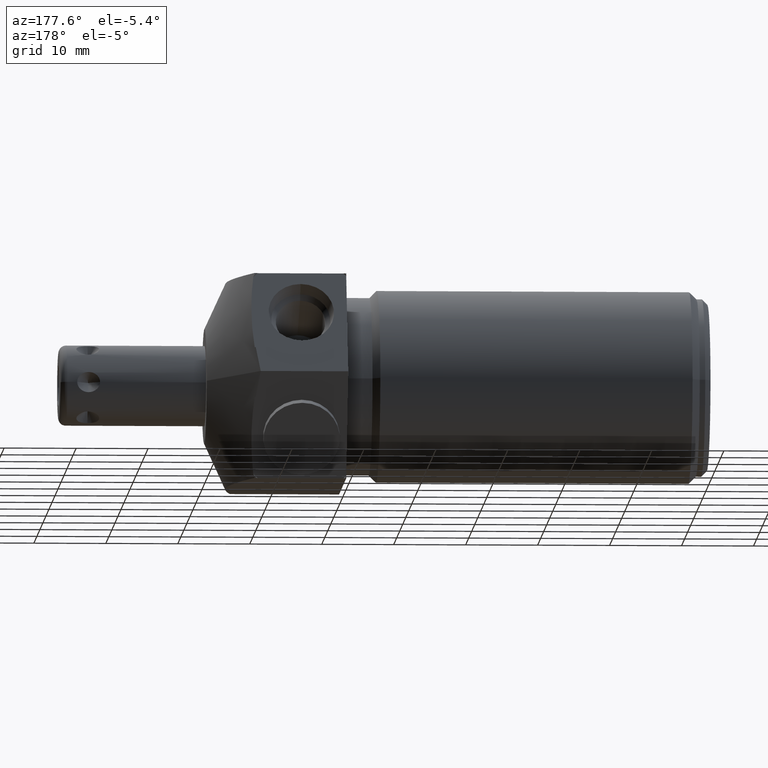
[diagram: clean part render]
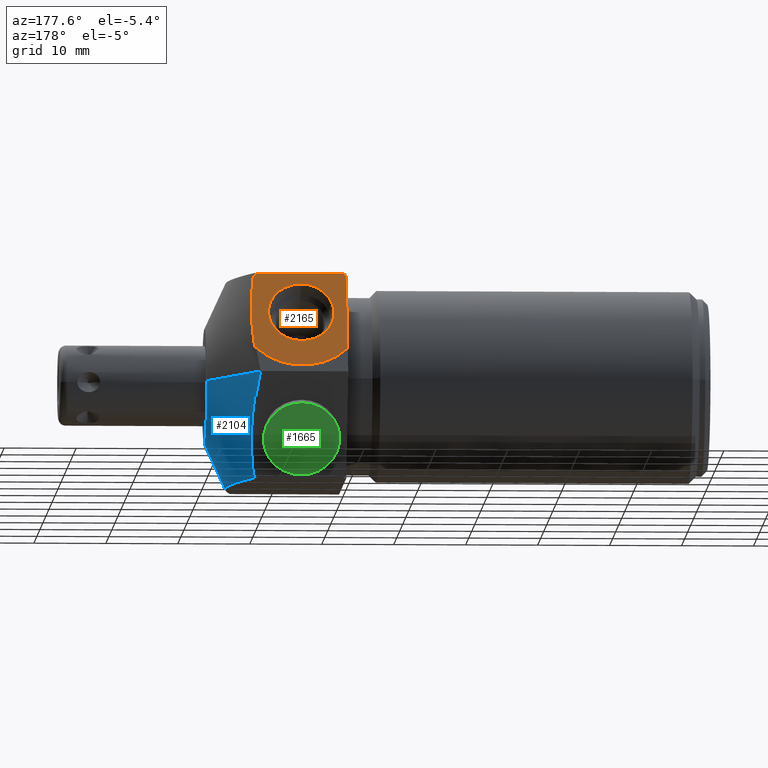
[diagram: same view with three faces highlighted in distinct colors, each labeled with its STEP entity id]
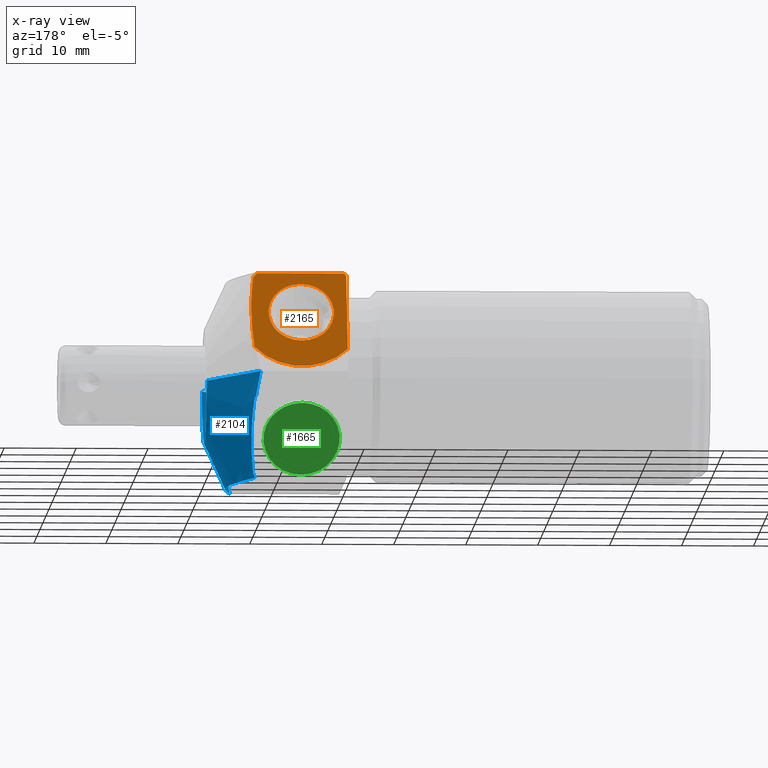
[diagram: x-ray of the same camera — body ghosted, the three highlighted faces saturated]
A machine part, auxiliary view with three faces highlighted in distinct colors.
The next image is the same camera in x-ray (body ghosted, the three faces saturated) — at least one of them is partly hidden behind the body in this view.
Their STEP definitions:

[orange] entity #2165 — the highlighted planar face has unit normal (0, -0.9063, -0.4226).
#310=DIRECTION('',(0.E0,4.226182617407E-1,-9.063077870367E-1));
#311=VECTOR('',#310,4.638146181396E-1);
#312=CARTESIAN_POINT('',(0.E0,4.418505813593E-1,5.491192459967E-1));
#313=LINE('',#312,#311);
#660=DIRECTION('',(1.E0,0.E0,0.E0));
#661=VECTOR('',#660,4.708895888355E-1);
#662=CARTESIAN_POINT('',(1.455520558224E-2,4.356110332957E-1,5.625E-1));
#663=LINE('',#662,#661);
#726=CARTESIAN_POINT('',(2.5E-1,5.398588452034E-1,3.389398459160E-1));
#727=DIRECTION('',(0.E0,-9.063077870367E-1,-4.226182617407E-1));
#728=DIRECTION('',(-6.904539425741E-1,-3.057120583802E-1,6.556016248796E-1));
#729=AXIS2_PLACEMENT_3D('',#726,#727,#728);
#734=CARTESIAN_POINT('',(5.088461842540E-1,4.460417289474E-1,
5.401313009894E-1));
#735=CARTESIAN_POINT('',(5.119136720244E-1,4.564632112213E-1,
5.177823601310E-1));
#736=CARTESIAN_POINT('',(5.170971932528E-1,4.773055134610E-1,
4.730858987386E-1));
#737=CARTESIAN_POINT('',(5.218417056262E-1,5.085565197783E-1,
4.060678994181E-1));
#738=CARTESIAN_POINT('',(5.234414757905E-1,5.398603729593E-1,
3.389365696330E-1));
#739=CARTESIAN_POINT('',(5.218414140613E-1,5.711639626308E-1,
2.718058049455E-1));
#740=CARTESIAN_POINT('',(5.170966721897E-1,6.024145862594E-1,
2.047886263038E-1));
#741=CARTESIAN_POINT('',(5.119133954888E-1,6.232554186874E-1,
1.600953169329E-1));
#742=CARTESIAN_POINT('',(5.088461842540E-1,6.336759614594E-1,
1.377483908427E-1));
#747=CARTESIAN_POINT('',(2.5E-1,5.398588452034E-1,3.389398459160E-1));
#748=DIRECTION('',(0.E0,-9.063077870367E-1,-4.226182617407E-1));
#749=DIRECTION('',(7.590797192201E-1,-2.751235080822E-1,5.900042670772E-1));
#750=AXIS2_PLACEMENT_3D('',#747,#748,#749);
#755=CARTESIAN_POINT('',(2.5E-1,5.398588452034E-1,3.389398459160E-1));
#756=DIRECTION('',(0.E0,9.063077870367E-1,4.226182617407E-1));
#757=DIRECTION('',(0.E0,4.226182617407E-1,-9.063077870366E-1));
#758=AXIS2_PLACEMENT_3D('',#755,#756,#757);
#763=CARTESIAN_POINT('',(2.5E-1,5.398588452034E-1,3.389398459160E-1));
#764=DIRECTION('',(0.E0,9.063077870367E-1,4.226182617407E-1));
#765=DIRECTION('',(0.E0,-4.226182617407E-1,9.063077870366E-1));
#766=AXIS2_PLACEMENT_3D('',#763,#764,#765);
#771=CARTESIAN_POINT('',(2.5E-1,5.398588452034E-1,3.389398459160E-1));
#772=DIRECTION('',(0.E0,9.063077870367E-1,4.226182617407E-1));
#773=DIRECTION('',(7.590797192201E-1,2.751235080822E-1,-5.900042670772E-1));
#774=AXIS2_PLACEMENT_3D('',#771,#772,#773);
#1538=CARTESIAN_POINT('',(1.455520558224E-2,4.356110332957E-1,5.625E-1));
#1539=CARTESIAN_POINT('',(4.854447944178E-1,4.356110332957E-1,5.625E-1));
#1540=VERTEX_POINT('',#1538);
#1541=VERTEX_POINT('',#1539);
#1543=CARTESIAN_POINT('',(0.E0,4.418505813593E-1,5.491192459967E-1));
#1544=VERTEX_POINT('',#1543);
#1557=CARTESIAN_POINT('',(2.5E-1,6.155075140550E-1,1.767107520365E-1));
#1558=CARTESIAN_POINT('',(2.5E-1,4.642101763518E-1,5.011689397956E-1));
#1559=VERTEX_POINT('',#1557);
#1560=VERTEX_POINT('',#1558);
#1571=CARTESIAN_POINT('',(0.E0,6.378671090474E-1,1.287604458354E-1));
#1572=VERTEX_POINT('',#1571);
#1577=VERTEX_POINT('',#734);
#1578=VERTEX_POINT('',#742);
#2142=CARTESIAN_POINT('',(2.5E-1,5.398588452034E-1,3.389398459160E-1));
#2143=DIRECTION('',(0.E0,-9.063077870367E-1,-4.226182617407E-1));
#2144=DIRECTION('',(0.E0,4.226182617407E-1,-9.063077870367E-1));
#2145=AXIS2_PLACEMENT_3D('',#2142,#2143,#2144);
#2146=PLANE('',#2145);
#2147=ORIENTED_EDGE('',*,*,#2125,.F.);
#2149=ORIENTED_EDGE('',*,*,#2148,.T.);
#2150=ORIENTED_EDGE('',*,*,#1833,.T.);
#2152=ORIENTED_EDGE('',*,*,#2151,.F.);
#2154=ORIENTED_EDGE('',*,*,#2153,.F.);
#2156=ORIENTED_EDGE('',*,*,#2155,.T.);
#2157=EDGE_LOOP('',(#2147,#2149,#2150,#2152,#2154,#2156));
#2158=FACE_OUTER_BOUND('',#2157,.F.);
#2160=ORIENTED_EDGE('',*,*,#2159,.T.);
#2162=ORIENTED_EDGE('',*,*,#2161,.T.);
#2163=EDGE_LOOP('',(#2160,#2162));
#2164=FACE_BOUND('',#2163,.F.);
#2165=ADVANCED_FACE('',(#2158,#2164),#2146,.F.);
#730=CIRCLE('',#729,3.41E-1);
#743=B_SPLINE_CURVE_WITH_KNOTS('',3,(#734,#735,#736,#737,#738,#739,#740,#741,
#742),.UNSPECIFIED.,.F.,.F.,(4,1,1,1,1,1,4),(0.E0,1.666666666667E-1,
3.333333333333E-1,5.E-1,6.666666666667E-1,8.333333333333E-1,1.E0),
.UNSPECIFIED.);
#751=CIRCLE('',#750,3.41E-1);
#759=CIRCLE('',#758,1.79E-1);
#767=CIRCLE('',#766,1.79E-1);
#775=CIRCLE('',#774,3.41E-1);
#1833=EDGE_CURVE('',#1544,#1572,#313,.T.);
#2125=EDGE_CURVE('',#1540,#1541,#663,.T.);
#2148=EDGE_CURVE('',#1540,#1544,#730,.T.);
#2151=EDGE_CURVE('',#1578,#1572,#775,.T.);
#2153=EDGE_CURVE('',#1577,#1578,#743,.T.);
#2155=EDGE_CURVE('',#1577,#1541,#751,.T.);
#2159=EDGE_CURVE('',#1559,#1560,#759,.T.);
#2161=EDGE_CURVE('',#1560,#1559,#767,.T.);

[blue] entity #2104 — the highlighted conical surface has half-angle 65 deg.
#154=CARTESIAN_POINT('',(5.088461842540E-1,6.336759614594E-1,
-1.377483908427E-1));
#155=CARTESIAN_POINT('',(5.119136720244E-1,6.232544791855E-1,
-1.600973317011E-1));
#156=CARTESIAN_POINT('',(5.170971932528E-1,6.024121769458E-1,
-2.047937930934E-1));
#157=CARTESIAN_POINT('',(5.218417056262E-1,5.711611706284E-1,
-2.718117924140E-1));
#158=CARTESIAN_POINT('',(5.234414757905E-1,5.398573174475E-1,
-3.389431221991E-1));
#159=CARTESIAN_POINT('',(5.218414140613E-1,5.085537277759E-1,
-4.060738868866E-1));
#160=CARTESIAN_POINT('',(5.170966721897E-1,4.773031041474E-1,
-4.730910655283E-1));
#161=CARTESIAN_POINT('',(5.119133954888E-1,4.564622717194E-1,
-5.177843748992E-1));
#162=CARTESIAN_POINT('',(5.088461842540E-1,4.460417289474E-1,
-5.401313009894E-1));
#213=CARTESIAN_POINT('',(5.017858896735E-1,4.466448124854E-1,-5.625E-1));
#214=CARTESIAN_POINT('',(5.124285199508E-1,4.161261041085E-1,-5.625E-1));
#215=CARTESIAN_POINT('',(5.319160560046E-1,3.582675629128E-1,-5.625E-1));
#216=CARTESIAN_POINT('',(5.555809071998E-1,2.823954536952E-1,-5.625E-1));
#217=CARTESIAN_POINT('',(5.751828089178E-1,2.136443540677E-1,-5.625E-1));
#218=CARTESIAN_POINT('',(5.915058484384E-1,1.497828566668E-1,-5.625E-1));
#219=CARTESIAN_POINT('',(6.050737611444E-1,8.899300830255E-2,-5.625E-1));
#220=CARTESIAN_POINT('',(6.161345734624E-1,2.998187906071E-2,-5.625E-1));
#221=CARTESIAN_POINT('',(6.247563065770E-1,-2.823001335806E-2,-5.625E-1));
#222=CARTESIAN_POINT('',(6.308640061414E-1,-8.629067168121E-2,-5.625E-1));
#223=CARTESIAN_POINT('',(6.343074256497E-1,-1.444910150945E-1,-5.625E-1));
#224=CARTESIAN_POINT('',(6.349560496138E-1,-2.028117433477E-1,-5.625E-1));
#225=CARTESIAN_POINT('',(6.327805426207E-1,-2.610799655521E-1,-5.625E-1));
#226=CARTESIAN_POINT('',(6.278766368966E-1,-3.191645706285E-1,-5.625E-1));
#227=CARTESIAN_POINT('',(6.203865509863E-1,-3.772668225426E-1,-5.625E-1));
#228=CARTESIAN_POINT('',(6.104691332851E-1,-4.356817760415E-1,-5.625E-1));
#229=CARTESIAN_POINT('',(6.021538478645E-1,-4.758005482973E-1,-5.625E-1));
#230=CARTESIAN_POINT('',(5.976003223953E-1,-4.960783708246E-1,-5.625E-1));
#594=CARTESIAN_POINT('',(5.036072321582E-1,4.525831524236E-1,
-5.497651889061E-1));
#595=CARTESIAN_POINT('',(5.033121042958E-1,4.515935470542E-1,
-5.518874044695E-1));
#596=CARTESIAN_POINT('',(5.027133834995E-1,4.496142202441E-1,
-5.561320845116E-1));
#597=CARTESIAN_POINT('',(5.020978398968E-1,4.476346557384E-1,
-5.603772742936E-1));
#598=CARTESIAN_POINT('',(5.017858896735E-1,4.466448124854E-1,-5.625E-1));
#603=CARTESIAN_POINT('',(4.791018906763E-1,7.089428701975E-1,0.E0));
#604=CARTESIAN_POINT('',(4.841175794509E-1,6.981866909093E-1,
-2.306670092182E-2));
#605=CARTESIAN_POINT('',(4.932497257403E-1,6.768197103861E-1,
-6.888833852417E-2));
#606=CARTESIAN_POINT('',(5.004838178306E-1,6.557339427254E-1,
-1.141069131969E-1));
#607=CARTESIAN_POINT('',(5.036072321582E-1,6.452606937239E-1,
-1.365668681608E-1));
#627=CARTESIAN_POINT('',(5.036072321582E-1,4.525831524236E-1,
-5.497651889061E-1));
#628=CARTESIAN_POINT('',(5.044973959964E-1,4.514566626452E-1,
-5.481471928456E-1));
#629=CARTESIAN_POINT('',(5.062607421928E-1,4.492401600280E-1,
-5.449233066923E-1));
#630=CARTESIAN_POINT('',(5.079900527902E-1,4.470959425985E-1,
-5.417243589410E-1));
#631=CARTESIAN_POINT('',(5.088461842540E-1,4.460417289474E-1,
-5.401313009894E-1));
#636=CARTESIAN_POINT('',(6.343557007776E-1,-7.5E-1,0.E0));
#637=CARTESIAN_POINT('',(6.343557007776E-1,-7.5E-1,-2.639945227058E-2));
#638=CARTESIAN_POINT('',(6.339228743735E-1,-7.472089192813E-1,
-7.921164799552E-2));
#639=CARTESIAN_POINT('',(6.319914703219E-1,-7.346925548924E-1,
-1.575620260070E-1));
#640=CARTESIAN_POINT('',(6.288224715053E-1,-7.139555821587E-1,
-2.342427704134E-1));
#641=CARTESIAN_POINT('',(6.244924603731E-1,-6.852191351177E-1,
-3.083562685212E-1));
#642=CARTESIAN_POINT('',(6.190914041522E-1,-6.487235541059E-1,
-3.791756269234E-1));
#643=CARTESIAN_POINT('',(6.127404277032E-1,-6.048849800505E-1,
-4.457974419392E-1));
#644=CARTESIAN_POINT('',(6.055634018664E-1,-5.541430465208E-1,
-5.074980845745E-1));
#645=CARTESIAN_POINT('',(6.003168663148E-1,-5.160731810444E-1,
-5.448662348822E-1));
#646=CARTESIAN_POINT('',(5.976003223953E-1,-4.960783708246E-1,-5.625E-1));
#651=CARTESIAN_POINT('',(5.088461842540E-1,6.336759614594E-1,
-1.377483908427E-1));
#652=CARTESIAN_POINT('',(5.079900527902E-1,6.355739501237E-1,
-1.375319674393E-1));
#653=CARTESIAN_POINT('',(5.062607421928E-1,6.394027626687E-1,
-1.371182893074E-1));
#654=CARTESIAN_POINT('',(5.044973959964E-1,6.432971431608E-1,
-1.367439547460E-1));
#655=CARTESIAN_POINT('',(5.036072321582E-1,6.452606937239E-1,
-1.365668681608E-1));
#837=DIRECTION('',(4.226182617407E-1,-9.063077870367E-1,0.E0));
#838=VECTOR('',#837,6.409995351547E-1);
#839=CARTESIAN_POINT('',(4.791018906763E-1,7.089428701975E-1,0.E0));
#840=LINE('',#839,#838);
#844=DIRECTION('',(4.226182617407E-1,9.063077870367E-1,0.E0));
#845=VECTOR('',#844,2.736377239027E-1);
#846=CARTESIAN_POINT('',(6.343557007776E-1,-7.5E-1,0.E0));
#847=LINE('',#846,#845);
#875=CARTESIAN_POINT('',(7.5E-1,-1.87E-1,0.E0));
#876=DIRECTION('',(-1.E0,0.E0,0.E0));
#877=DIRECTION('',(0.E0,1.E0,0.E0));
#878=AXIS2_PLACEMENT_3D('',#875,#876,#877);
#1493=CARTESIAN_POINT('',(7.5E-1,1.28E-1,0.E0));
#1494=CARTESIAN_POINT('',(7.5E-1,-5.02E-1,0.E0));
#1495=VERTEX_POINT('',#1493);
#1496=VERTEX_POINT('',#1494);
#1497=VERTEX_POINT('',#636);
#1498=VERTEX_POINT('',#646);
#1500=VERTEX_POINT('',#213);
#1502=CARTESIAN_POINT('',(4.791018906763E-1,7.089428701975E-1,0.E0));
#1503=VERTEX_POINT('',#1502);
#1567=CARTESIAN_POINT('',(5.036072321582E-1,4.525831524236E-1,
-5.497651889061E-1));
#1568=VERTEX_POINT('',#1567);
#1569=CARTESIAN_POINT('',(5.088461842540E-1,4.460417289474E-1,
-5.401313009894E-1));
#1570=VERTEX_POINT('',#1569);
#1588=VERTEX_POINT('',#154);
#1589=VERTEX_POINT('',#655);
#2083=CARTESIAN_POINT('',(6.145509453382E-1,-1.87E-1,0.E0));
#2084=DIRECTION('',(-1.E0,0.E0,0.E0));
#2085=DIRECTION('',(0.E0,1.E0,0.E0));
#2086=AXIS2_PLACEMENT_3D('',#2083,#2084,#2085);
#2087=CONICAL_SURFACE('',#2086,6.054714350988E-1,6.5E1);
#2088=ORIENTED_EDGE('',*,*,#1739,.T.);
#2089=ORIENTED_EDGE('',*,*,#1799,.F.);
#2090=ORIENTED_EDGE('',*,*,#2053,.T.);
#2091=ORIENTED_EDGE('',*,*,#1768,.T.);
#2093=ORIENTED_EDGE('',*,*,#2092,.F.);
#2095=ORIENTED_EDGE('',*,*,#2094,.T.);
#2097=ORIENTED_EDGE('',*,*,#2096,.F.);
#2099=ORIENTED_EDGE('',*,*,#2098,.F.);
#2100=ORIENTED_EDGE('',*,*,#2064,.T.);
#2101=ORIENTED_EDGE('',*,*,#1815,.F.);
#2102=EDGE_LOOP('',(#2088,#2089,#2090,#2091,#2093,#2095,#2097,#2099,#2100,
#2101));
#2103=FACE_OUTER_BOUND('',#2102,.F.);
#2104=ADVANCED_FACE('',(#2103),#2087,.T.);
#163=B_SPLINE_CURVE_WITH_KNOTS('',3,(#154,#155,#156,#157,#158,#159,#160,#161,
#162),.UNSPECIFIED.,.F.,.F.,(4,1,1,1,1,1,4),(0.E0,1.666666666667E-1,
3.333333333333E-1,5.E-1,6.666666666667E-1,8.333333333333E-1,1.E0),
.UNSPECIFIED.);
#231=B_SPLINE_CURVE_WITH_KNOTS('',3,(#213,#214,#215,#216,#217,#218,#219,#220,
#221,#222,#223,#224,#225,#226,#227,#228,#229,#230),.UNSPECIFIED.,.F.,.F.,(4,1,1,
1,1,1,1,1,1,1,1,1,1,1,1,4),(0.E0,6.666666666667E-2,1.333333333333E-1,2.E-1,
2.666666666667E-1,3.333333333333E-1,4.E-1,4.666666666667E-1,5.333333333333E-1,
6.E-1,6.666666666667E-1,7.333333333333E-1,8.E-1,8.666666666667E-1,
9.333333333333E-1,1.E0),.UNSPECIFIED.);
#599=B_SPLINE_CURVE_WITH_KNOTS('',3,(#594,#595,#596,#597,#598),.UNSPECIFIED.,
.F.,.F.,(4,1,4),(0.E0,5.E-1,1.E0),.UNSPECIFIED.);
#608=B_SPLINE_CURVE_WITH_KNOTS('',3,(#603,#604,#605,#606,#607),.UNSPECIFIED.,
.F.,.F.,(4,1,4),(0.E0,5.E-1,1.E0),.UNSPECIFIED.);
#632=B_SPLINE_CURVE_WITH_KNOTS('',3,(#627,#628,#629,#630,#631),.UNSPECIFIED.,
.F.,.F.,(4,1,4),(0.E0,5.E-1,1.E0),.UNSPECIFIED.);
#647=B_SPLINE_CURVE_WITH_KNOTS('',3,(#636,#637,#638,#639,#640,#641,#642,#643,
#644,#645,#646),.UNSPECIFIED.,.F.,.F.,(4,1,1,1,1,1,1,1,4),(0.E0,1.25E-1,2.5E-1,
3.75E-1,5.E-1,6.25E-1,7.5E-1,8.75E-1,1.E0),.UNSPECIFIED.);
#656=B_SPLINE_CURVE_WITH_KNOTS('',3,(#651,#652,#653,#654,#655),.UNSPECIFIED.,
.F.,.F.,(4,1,4),(0.E0,5.E-1,1.E0),.UNSPECIFIED.);
#879=CIRCLE('',#878,3.15E-1);
#1739=EDGE_CURVE('',#1588,#1570,#163,.T.);
#1768=EDGE_CURVE('',#1500,#1498,#231,.T.);
#1799=EDGE_CURVE('',#1568,#1570,#632,.T.);
#1815=EDGE_CURVE('',#1588,#1589,#656,.T.);
#2053=EDGE_CURVE('',#1568,#1500,#599,.T.);
#2064=EDGE_CURVE('',#1503,#1589,#608,.T.);
#2092=EDGE_CURVE('',#1497,#1498,#647,.T.);
#2094=EDGE_CURVE('',#1497,#1496,#847,.T.);
#2096=EDGE_CURVE('',#1495,#1496,#879,.T.);
#2098=EDGE_CURVE('',#1503,#1495,#840,.T.);

[green] entity #1665 — the highlighted planar face has unit normal (0, -0.9063, 0.4226).
#115=CARTESIAN_POINT('',(2.5E-1,5.851742345552E-1,-3.600707590031E-1));
#116=DIRECTION('',(0.E0,9.063077870366E-1,-4.226182617407E-1));
#117=DIRECTION('',(0.E0,4.226182617407E-1,9.063077870366E-1));
#118=AXIS2_PLACEMENT_3D('',#115,#116,#117);
#124=CARTESIAN_POINT('',(2.5E-1,5.851742345552E-1,-3.600707590031E-1));
#125=DIRECTION('',(0.E0,9.063077870366E-1,-4.226182617407E-1));
#126=DIRECTION('',(0.E0,-4.226182617407E-1,-9.063077870366E-1));
#127=AXIS2_PLACEMENT_3D('',#124,#125,#126);
#1620=CARTESIAN_POINT('',(2.5E-1,6.735014512590E-1,-1.706524315124E-1));
#1621=CARTESIAN_POINT('',(2.5E-1,4.968470178514E-1,-5.494890864937E-1));
#1622=VERTEX_POINT('',#1620);
#1623=VERTEX_POINT('',#1621);
#1654=CARTESIAN_POINT('',(7.5E-1,6.185735930495E-1,-2.884456035715E-1));
#1655=DIRECTION('',(0.E0,-9.063077870366E-1,4.226182617407E-1));
#1656=DIRECTION('',(0.E0,-4.226182617407E-1,-9.063077870366E-1));
#1657=AXIS2_PLACEMENT_3D('',#1654,#1655,#1656);
#1658=PLANE('',#1657);
#1660=ORIENTED_EDGE('',*,*,#1659,.F.);
#1662=ORIENTED_EDGE('',*,*,#1661,.F.);
#1663=EDGE_LOOP('',(#1660,#1662));
#1664=FACE_OUTER_BOUND('',#1663,.F.);
#1665=ADVANCED_FACE('',(#1664),#1658,.F.);
#119=CIRCLE('',#118,2.09E-1);
#128=CIRCLE('',#127,2.09E-1);
#1659=EDGE_CURVE('',#1622,#1623,#119,.T.);
#1661=EDGE_CURVE('',#1623,#1622,#128,.T.);